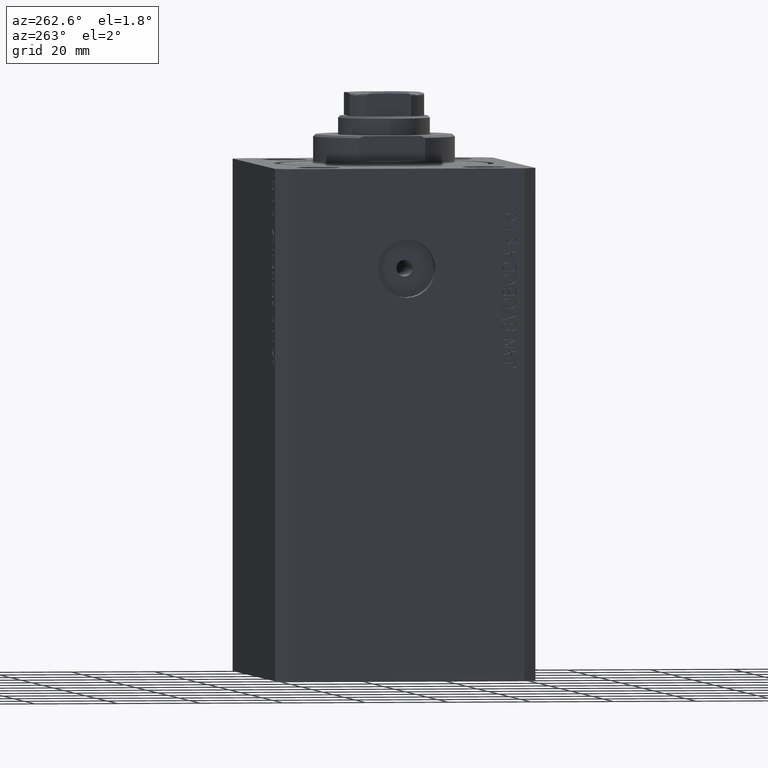
[diagram: clean part render]
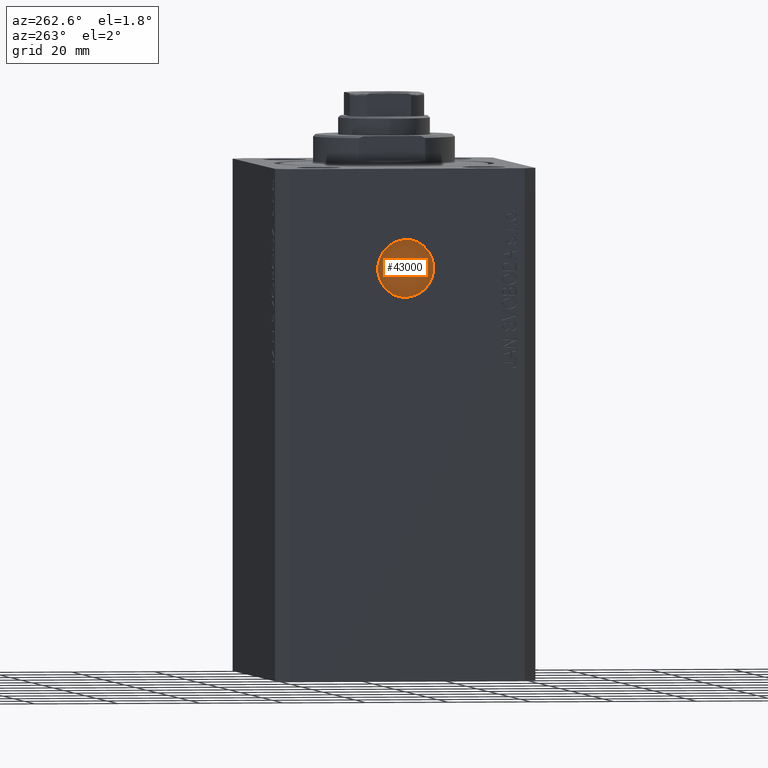
[diagram: same view with one face highlighted and labeled with its STEP entity id]
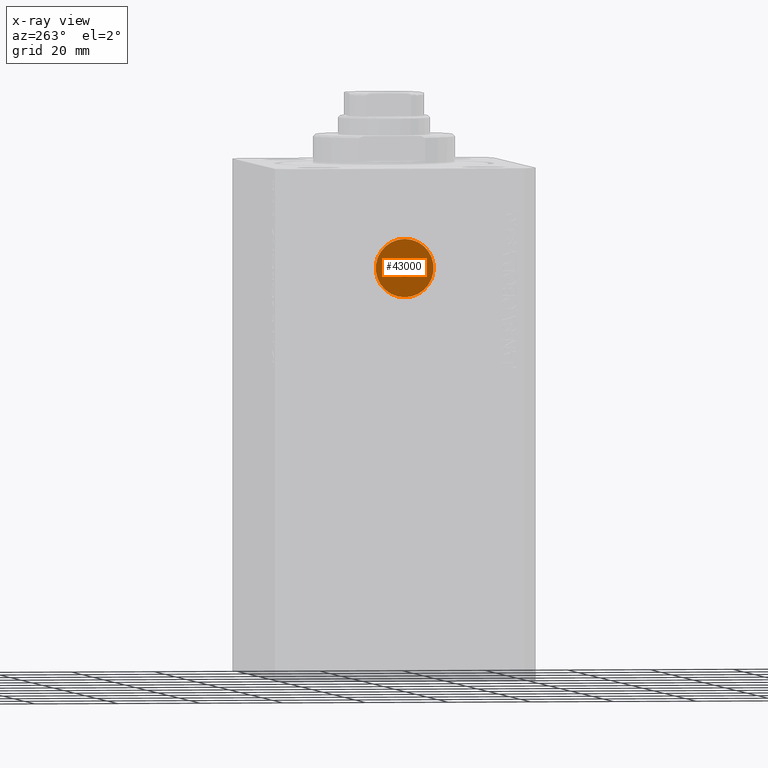
[diagram: x-ray of the same camera — body ghosted, the highlighted face saturated]
A machine part, auxiliary view. The second image highlights one B-rep face of the part: STEP entity #43000.
The next image is the same camera in x-ray: the body ghosted, the highlighted face saturated — about 0% of this face is hidden behind the body in this view.
In plain terms, the highlighted planar face has unit normal (-1, 0, 0).
Its self-contained STEP definition (entity closure, byte-faithful):
#23 = DIRECTION ( 'NONE',  ( 0.000000000000000000, 0.000000000000000000, 1.000000000000000000 ) ) ;
#166 = AXIS2_PLACEMENT_3D ( 'NONE', #23575, #37569, #44329 ) ;
#340 = EDGE_LOOP ( 'NONE', ( #32337, #24247 ) ) ;
#590 = AXIS2_PLACEMENT_3D ( 'NONE', #27132, #6635, #33911 ) ;
#709 = AXIS2_PLACEMENT_3D ( 'NONE', #12580, #41968, #42186 ) ;
#1783 = CARTESIAN_POINT ( 'NONE',  ( -38.50000000000000711, 0.000000000000000000, -23.99999999999999645 ) ) ;
#2456 = DIRECTION ( 'NONE',  ( -1.000000000000000000, 0.000000000000000000, 0.000000000000000000 ) ) ;
#2952 = FACE_BOUND ( 'NONE', #39253, .T. ) ;
#3941 = CARTESIAN_POINT ( 'NONE',  ( -38.50000000000000711, 8.572527594031474176E-16, -31.00000000000000000 ) ) ;
#4836 = EDGE_CURVE ( 'NONE', #23502, #19624, #29370, .T. ) ;
#6383 = CIRCLE ( 'NONE', #709, 1.999999999999998224 ) ;
#6635 = DIRECTION ( 'NONE',  ( -1.000000000000000000, 0.000000000000000000, 0.000000000000000000 ) ) ;
#7388 = VERTEX_POINT ( 'NONE', #9793 ) ;
#8373 = ORIENTED_EDGE ( 'NONE', *, *, #15084, .F. ) ;
#9793 = CARTESIAN_POINT ( 'NONE',  ( -38.50000000000000711, 0.000000000000000000, -22.00000000000000000 ) ) ;
#10666 = EDGE_CURVE ( 'NONE', #7388, #30444, #6383, .T. ) ;
#12258 = ORIENTED_EDGE ( 'NONE', *, *, #10666, .F. ) ;
#12580 = CARTESIAN_POINT ( 'NONE',  ( -38.50000000000000711, 0.000000000000000000, -23.99999999999999645 ) ) ;
#15084 = EDGE_CURVE ( 'NONE', #30444, #7388, #28801, .T. ) ;
#16929 = FACE_OUTER_BOUND ( 'NONE', #340, .T. ) ;
#18514 = CARTESIAN_POINT ( 'NONE',  ( -38.50000000000000711, 2.449293598294705921E-16, -25.99999999999999645 ) ) ;
#19624 = VERTEX_POINT ( 'NONE', #23572 ) ;
#22447 = EDGE_CURVE ( 'NONE', #19624, #23502, #36891, .T. ) ;
#23502 = VERTEX_POINT ( 'NONE', #3941 ) ;
#23572 = CARTESIAN_POINT ( 'NONE',  ( -38.50000000000000711, 0.000000000000000000, -16.99999999999999645 ) ) ;
#23575 = CARTESIAN_POINT ( 'NONE',  ( -38.50000000000000711, 0.000000000000000000, -23.99999999999999645 ) ) ;
#24247 = ORIENTED_EDGE ( 'NONE', *, *, #4836, .T. ) ;
#27074 = DIRECTION ( 'NONE',  ( -1.000000000000000000, 0.000000000000000000, 0.000000000000000000 ) ) ;
#27132 = CARTESIAN_POINT ( 'NONE',  ( -38.50000000000000711, 0.000000000000000000, -23.99999999999999645 ) ) ;
#27532 = PLANE ( 'NONE',  #36139 ) ;
#28801 = CIRCLE ( 'NONE', #32411, 1.999999999999998224 ) ;
#29370 = CIRCLE ( 'NONE', #590, 6.999999999999999112 ) ;
#29491 = DIRECTION ( 'NONE',  ( 0.000000000000000000, 0.000000000000000000, 1.000000000000000000 ) ) ;
#30444 = VERTEX_POINT ( 'NONE', #18514 ) ;
#30454 = CARTESIAN_POINT ( 'NONE',  ( -38.50000000000000711, 0.000000000000000000, -23.99999999999999645 ) ) ;
#32337 = ORIENTED_EDGE ( 'NONE', *, *, #22447, .T. ) ;
#32411 = AXIS2_PLACEMENT_3D ( 'NONE', #1783, #2456, #29491 ) ;
#33911 = DIRECTION ( 'NONE',  ( 0.000000000000000000, 0.000000000000000000, 1.000000000000000000 ) ) ;
#36139 = AXIS2_PLACEMENT_3D ( 'NONE', #30454, #27074, #23 ) ;
#36891 = CIRCLE ( 'NONE', #166, 6.999999999999999112 ) ;
#37569 = DIRECTION ( 'NONE',  ( -1.000000000000000000, 0.000000000000000000, 0.000000000000000000 ) ) ;
#39253 = EDGE_LOOP ( 'NONE', ( #12258, #8373 ) ) ;
#41968 = DIRECTION ( 'NONE',  ( -1.000000000000000000, 0.000000000000000000, 0.000000000000000000 ) ) ;
#42186 = DIRECTION ( 'NONE',  ( 0.000000000000000000, 0.000000000000000000, 1.000000000000000000 ) ) ;
#43000 = ADVANCED_FACE ( 'NONE', ( #2952, #16929 ), #27532, .T. ) ;
#44329 = DIRECTION ( 'NONE',  ( 0.000000000000000000, 0.000000000000000000, 1.000000000000000000 ) ) ;